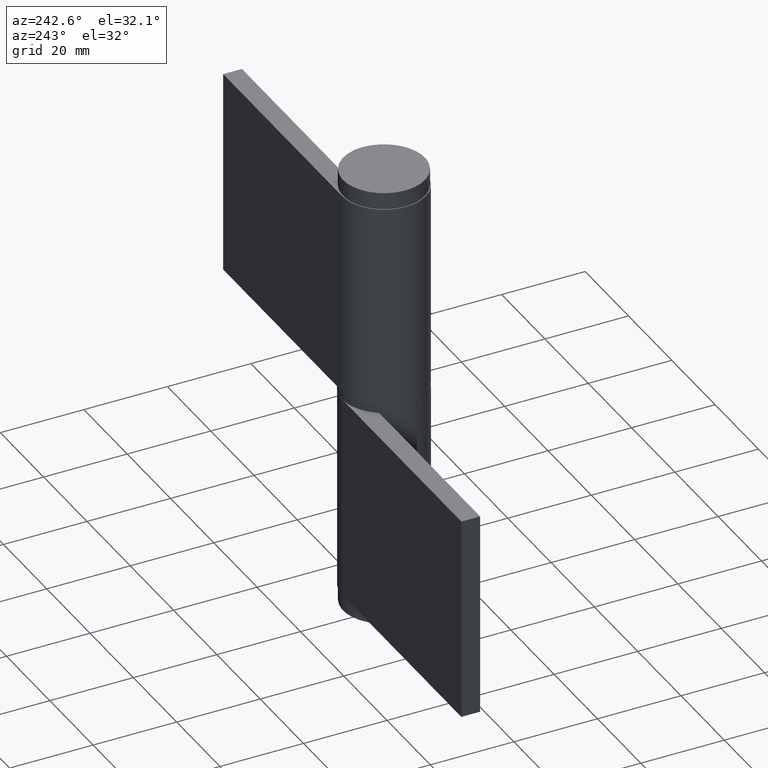
[diagram: clean part render]
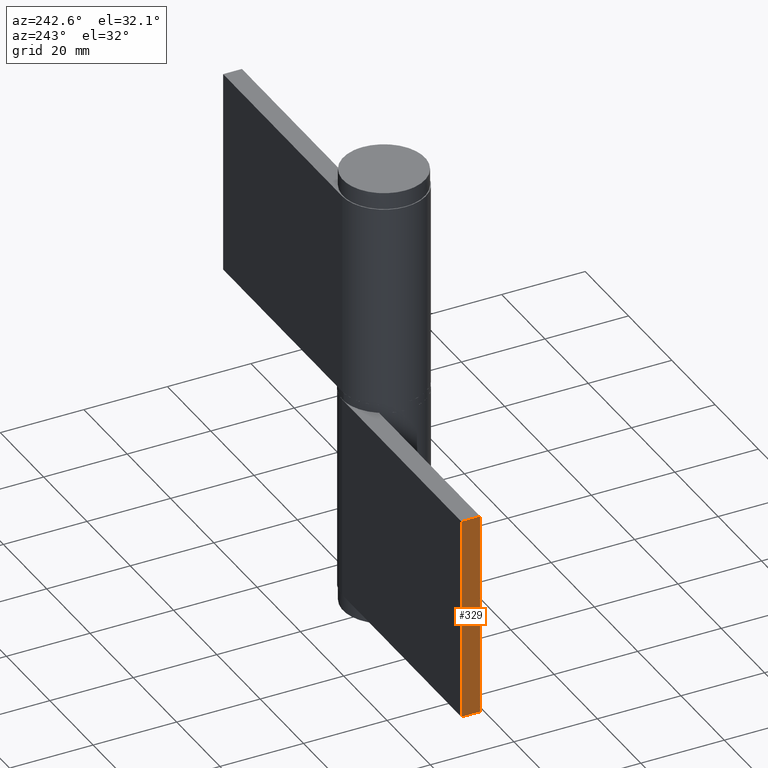
[diagram: same view with one face highlighted and labeled with its STEP entity id]
A machine part, auxiliary view. The second image highlights one B-rep face of the part: STEP entity #329.
In plain terms, the highlighted face is a freeform B-spline surface patch.
Its self-contained STEP definition (entity closure, byte-faithful):
#49=CARTESIAN_POINT('',(-55.0,5.500000000000000,0.0));
#50=VERTEX_POINT('',#49);
#51=CARTESIAN_POINT('',(-55.0,10.0,0.0));
#52=VERTEX_POINT('',#51);
#53=CARTESIAN_POINT('',(-55.0,5.500000000000000,0.0));
#54=CARTESIAN_POINT('',(-55.0,10.0,0.0));
#55=QUASI_UNIFORM_CURVE('',1,(#53,#54),.UNSPECIFIED.,.F.,.U.);
#56=EDGE_CURVE('',#50,#52,#55,.T.);
#127=CARTESIAN_POINT('',(-55.0,5.500000000000000,49.0));
#128=VERTEX_POINT('',#127);
#129=CARTESIAN_POINT('',(-55.0,10.0,49.0));
#130=VERTEX_POINT('',#129);
#131=CARTESIAN_POINT('',(-55.0,5.500000000000000,49.0));
#132=CARTESIAN_POINT('',(-55.0,10.0,49.0));
#133=QUASI_UNIFORM_CURVE('',1,(#131,#132),.UNSPECIFIED.,.F.,.U.);
#134=EDGE_CURVE('',#128,#130,#133,.T.);
#212=CARTESIAN_POINT('',(-55.0,5.500000000000000,49.0));
#213=CARTESIAN_POINT('',(-55.0,5.500000000000000,0.0));
#214=QUASI_UNIFORM_CURVE('',1,(#212,#213),.UNSPECIFIED.,.F.,.U.);
#215=EDGE_CURVE('',#128,#50,#214,.T.);
#308=CARTESIAN_POINT('',(-55.0,10.0,49.0));
#309=CARTESIAN_POINT('',(-55.0,10.0,0.0));
#310=QUASI_UNIFORM_CURVE('',1,(#308,#309),.UNSPECIFIED.,.F.,.U.);
#311=EDGE_CURVE('',#130,#52,#310,.T.);
#318=CARTESIAN_POINT('',(-55.0,5.275225008721873,-2.447549905028492));
#319=CARTESIAN_POINT('',(-55.0,5.275225008721873,51.447551219310910));
#320=CARTESIAN_POINT('',(-55.0,10.224775111977531,-2.447549905028492));
#321=CARTESIAN_POINT('',(-55.0,10.224775111977531,51.447551219310910));
#322=B_SPLINE_SURFACE_WITH_KNOTS('',1,1,((#318,#320),(#319,#321)),.UNSPECIFIED.,.F.,.F.,.U.,(2,2),(2,2),(0.0,53.895101124339412),(0.0,4.949550103255658),.UNSPECIFIED.);
#323=ORIENTED_EDGE('',*,*,#56,.F.);
#324=ORIENTED_EDGE('',*,*,#215,.F.);
#325=ORIENTED_EDGE('',*,*,#134,.T.);
#326=ORIENTED_EDGE('',*,*,#311,.T.);
#327=EDGE_LOOP('',(#323,#324,#325,#326));
#328=FACE_OUTER_BOUND('',#327,.T.);
#329=ADVANCED_FACE('',(#328),#322,.T.);